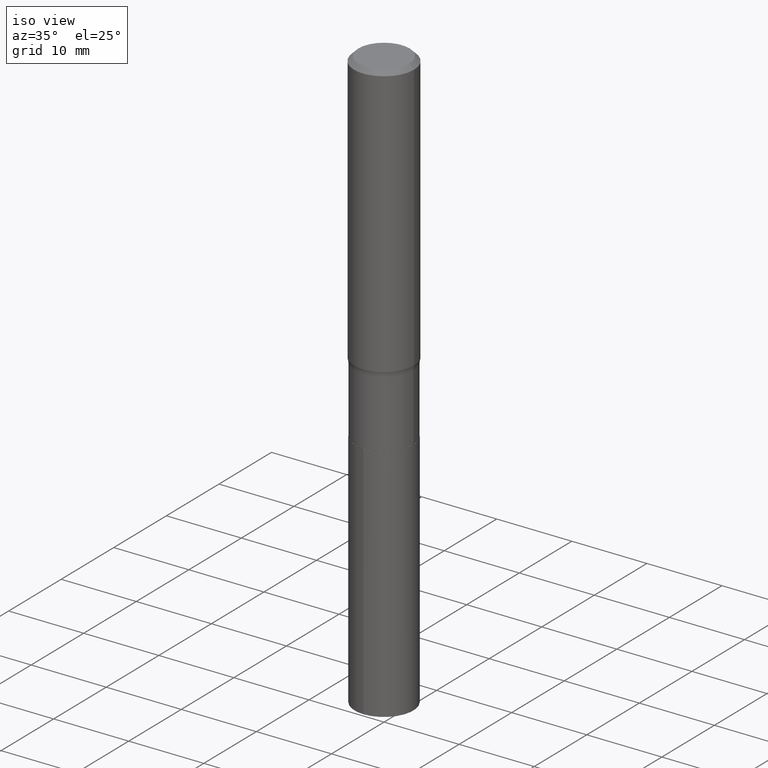
[diagram: clean part render]
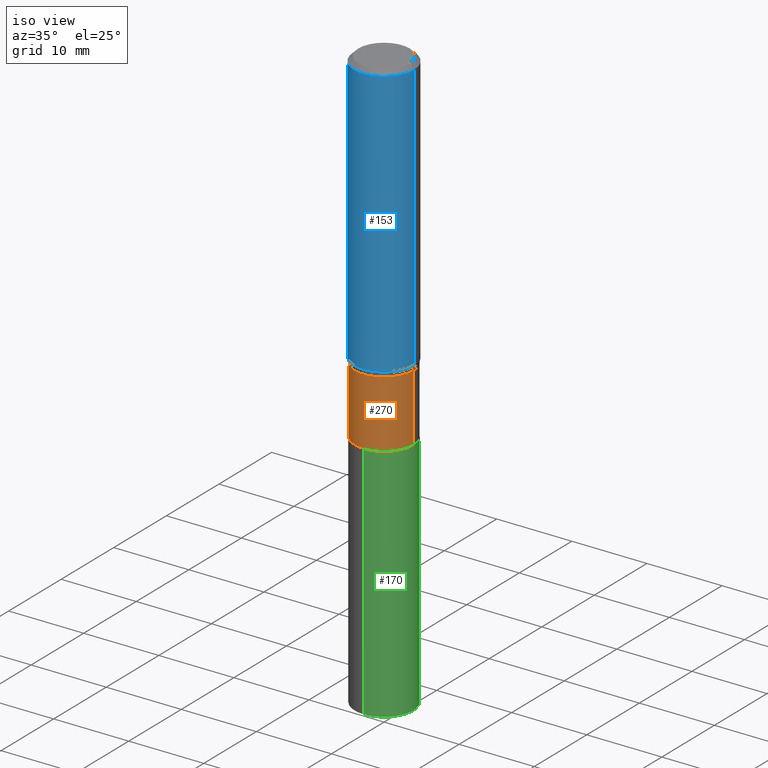
[diagram: same view with three faces highlighted in distinct colors, each labeled with its STEP entity id]
A machine part, iso view with three faces highlighted in distinct colors.
Their STEP definitions:

[orange] entity #270 — the highlighted cylindrical surface (edge-blend (fillet) strip) has radius 3.9002 mm, axis along (-0, 0, 1).
#66 = VERTEX_POINT ( 'NONE', #290 ) ;
#71 = LINE ( 'NONE', #365, #364 ) ;
#82 = CIRCLE ( 'NONE', #106, 0.1535499999999999643 ) ;
#86 = CIRCLE ( 'NONE', #376, 0.1535499999999999921 ) ;
#93 = CARTESIAN_POINT ( 'NONE',  ( 0.000000000000000000, 0.000000000000000000, 0.000000000000000000 ) ) ;
#106 = AXIS2_PLACEMENT_3D ( 'NONE', #489, #235, #154 ) ;
#117 = ORIENTED_EDGE ( 'NONE', *, *, #210, .T. ) ;
#127 = CARTESIAN_POINT ( 'NONE',  ( -0.1535499999999999643, -4.586983156534031207E-15, -1.449899999999999967 ) ) ;
#149 = VERTEX_POINT ( 'NONE', #324 ) ;
#154 = DIRECTION ( 'NONE',  ( 1.000000000000000000, -6.982962677686263555E-15, 0.000000000000000000 ) ) ;
#169 = CARTESIAN_POINT ( 'NONE',  ( 0.1535499999999999643, -6.134532712347401777E-15, -1.449899999999999967 ) ) ;
#183 = DIRECTION ( 'NONE',  ( -2.445468806185136877E-29, 3.491481338843145188E-15, 1.000000000000000000 ) ) ;
#209 = EDGE_CURVE ( 'NONE', #149, #460, #71, .T. ) ;
#210 = EDGE_CURVE ( 'NONE', #149, #66, #86, .T. ) ;
#227 = LINE ( 'NONE', #484, #441 ) ;
#235 = DIRECTION ( 'NONE',  ( -2.445468806185136597E-29, 3.491481338843145583E-15, 1.000000000000000000 ) ) ;
#247 = EDGE_CURVE ( 'NONE', #66, #383, #227, .T. ) ;
#270 = ADVANCED_FACE ( 'NONE', ( #303 ), #409, .T. ) ;
#285 = AXIS2_PLACEMENT_3D ( 'NONE', #93, #411, #297 ) ;
#290 = CARTESIAN_POINT ( 'NONE',  ( 0.1535499999999999921, -7.365978180557380092E-15, -1.802599999999999980 ) ) ;
#297 = DIRECTION ( 'NONE',  ( 1.000000000000000000, -6.982962677686267499E-15, 4.876176775795935793E-29 ) ) ;
#301 = CARTESIAN_POINT ( 'NONE',  ( 4.408202070029327321E-29, -6.293744261398653946E-15, -1.802599999999999980 ) ) ;
#303 = FACE_OUTER_BOUND ( 'NONE', #312, .T. ) ;
#312 = EDGE_LOOP ( 'NONE', ( #361, #117, #381, #348 ) ) ;
#324 = CARTESIAN_POINT ( 'NONE',  ( -0.1535500000000000198, -4.586983156534031207E-15, -1.802599999999999980 ) ) ;
#338 = EDGE_CURVE ( 'NONE', #460, #383, #82, .T. ) ;
#348 = ORIENTED_EDGE ( 'NONE', *, *, #338, .F. ) ;
#361 = ORIENTED_EDGE ( 'NONE', *, *, #209, .F. ) ;
#364 = VECTOR ( 'NONE', #183, 39.37007874015748143 ) ;
#365 = CARTESIAN_POINT ( 'NONE',  ( -0.1535499999999999643, 1.091038370759633582E-15, -7.553024831086406471E-30 ) ) ;
#374 = DIRECTION ( 'NONE',  ( -2.445468806185136877E-29, 3.491481338843145188E-15, 1.000000000000000000 ) ) ;
#376 = AXIS2_PLACEMENT_3D ( 'NONE', #301, #477, #414 ) ;
#381 = ORIENTED_EDGE ( 'NONE', *, *, #247, .T. ) ;
#383 = VERTEX_POINT ( 'NONE', #169 ) ;
#409 = CYLINDRICAL_SURFACE ( 'NONE', #285, 0.1535499999999999643 ) ;
#411 = DIRECTION ( 'NONE',  ( -2.445468806185136597E-29, 3.491481338843145583E-15, 1.000000000000000000 ) ) ;
#414 = DIRECTION ( 'NONE',  ( 1.000000000000000000, -6.982962677686269077E-15, 0.000000000000000000 ) ) ;
#441 = VECTOR ( 'NONE', #374, 39.37007874015748143 ) ;
#460 = VERTEX_POINT ( 'NONE', #127 ) ;
#477 = DIRECTION ( 'NONE',  ( -2.445468806185136597E-29, 3.491481338843145583E-15, 1.000000000000000000 ) ) ;
#484 = CARTESIAN_POINT ( 'NONE',  ( 0.1535499999999999643, -1.072233919158726146E-15, 7.487369439234657779E-30 ) ) ;
#489 = CARTESIAN_POINT ( 'NONE',  ( 3.545685222087829505E-29, -5.062298793188676419E-15, -1.449899999999999967 ) ) ;

[blue] entity #153 — the highlighted cylindrical surface (partial cylindrical patch) has radius 4.0005 mm, axis along (-0, 0, 1).
#5 = DIRECTION ( 'NONE',  ( -2.445468806185136877E-29, 3.491481338843145188E-15, 1.000000000000000000 ) ) ;
#12 = CARTESIAN_POINT ( 'NONE',  ( 3.485753895980108822E-29, -4.976732742954058685E-15, -1.425392909189378665 ) ) ;
#28 = EDGE_CURVE ( 'NONE', #426, #182, #255, .T. ) ;
#35 = ORIENTED_EDGE ( 'NONE', *, *, #291, .F. ) ;
#38 = AXIS2_PLACEMENT_3D ( 'NONE', #363, #328, #447 ) ;
#39 = VERTEX_POINT ( 'NONE', #161 ) ;
#72 = ORIENTED_EDGE ( 'NONE', *, *, #28, .T. ) ;
#77 = CIRCLE ( 'NONE', #449, 0.1575000000000001676 ) ;
#90 = CARTESIAN_POINT ( 'NONE',  ( -0.1575000000000000011, -1.410504685969955451E-15, -0.02362500000000014588 ) ) ;
#101 = CARTESIAN_POINT ( 'NONE',  ( 0.1575000000000000844, -1.099816621735587677E-15, 7.679978421878603638E-30 ) ) ;
#114 = VECTOR ( 'NONE', #5, 39.37007874015748143 ) ;
#125 = VECTOR ( 'NONE', #138, 39.37007874015748143 ) ;
#135 = FACE_OUTER_BOUND ( 'NONE', #144, .T. ) ;
#137 = DIRECTION ( 'NONE',  ( -2.445468806185136597E-29, 3.491481338843145583E-15, 1.000000000000000000 ) ) ;
#138 = DIRECTION ( 'NONE',  ( -2.445468806185136877E-29, 3.491481338843145188E-15, 1.000000000000000000 ) ) ;
#144 = EDGE_LOOP ( 'NONE', ( #259, #305, #72, #35 ) ) ;
#145 = DIRECTION ( 'NONE',  ( -2.445468806185136597E-29, 3.491481338843145583E-15, 1.000000000000000000 ) ) ;
#153 = ADVANCED_FACE ( 'NONE', ( #135 ), #249, .T. ) ;
#155 = VERTEX_POINT ( 'NONE', #90 ) ;
#161 = CARTESIAN_POINT ( 'NONE',  ( -0.1575000000000001676, -3.857627934131899504E-15, -1.425392909189378665 ) ) ;
#182 = VERTEX_POINT ( 'NONE', #219 ) ;
#219 = CARTESIAN_POINT ( 'NONE',  ( 0.1575000000000000011, -1.182302868365756679E-15, -0.02362500000000014588 ) ) ;
#236 = EDGE_CURVE ( 'NONE', #39, #155, #445, .T. ) ;
#249 = CYLINDRICAL_SURFACE ( 'NONE', #38, 0.1575000000000000844 ) ;
#255 = LINE ( 'NONE', #101, #114 ) ;
#259 = ORIENTED_EDGE ( 'NONE', *, *, #236, .F. ) ;
#291 = EDGE_CURVE ( 'NONE', #155, #182, #356, .T. ) ;
#305 = ORIENTED_EDGE ( 'NONE', *, *, #354, .T. ) ;
#319 = AXIS2_PLACEMENT_3D ( 'NONE', #369, #145, #420 ) ;
#320 = DIRECTION ( 'NONE',  ( 1.000000000000000000, -6.982962677686267499E-15, 0.000000000000000000 ) ) ;
#328 = DIRECTION ( 'NONE',  ( -2.445468806185136597E-29, 3.491481338843145583E-15, 1.000000000000000000 ) ) ;
#352 = CARTESIAN_POINT ( 'NONE',  ( 0.1575000000000001676, -6.076549364689645377E-15, -1.425392909189378665 ) ) ;
#354 = EDGE_CURVE ( 'NONE', #39, #426, #77, .T. ) ;
#356 = CIRCLE ( 'NONE', #319, 0.1575000000000000011 ) ;
#363 = CARTESIAN_POINT ( 'NONE',  ( 0.000000000000000000, 0.000000000000000000, 0.000000000000000000 ) ) ;
#369 = CARTESIAN_POINT ( 'NONE',  ( 5.777420054612421104E-31, -8.248624663016984002E-17, -0.02362500000000014588 ) ) ;
#420 = DIRECTION ( 'NONE',  ( 1.000000000000000000, -6.982962677686265922E-15, 0.000000000000000000 ) ) ;
#426 = VERTEX_POINT ( 'NONE', #352 ) ;
#445 = LINE ( 'NONE', #483, #125 ) ;
#447 = DIRECTION ( 'NONE',  ( 1.000000000000000000, -6.982962677686267499E-15, 4.876176775795936353E-29 ) ) ;
#449 = AXIS2_PLACEMENT_3D ( 'NONE', #12, #137, #320 ) ;
#483 = CARTESIAN_POINT ( 'NONE',  ( -0.1575000000000000844, 1.119104808822158392E-15, -7.747322767151481189E-30 ) ) ;

[green] entity #170 — the highlighted cylindrical surface (edge-blend (fillet) strip) has radius 3.9002 mm, axis along (-0, 0, 1).
#7 = AXIS2_PLACEMENT_3D ( 'NONE', #471, #406, #362 ) ;
#20 = CYLINDRICAL_SURFACE ( 'NONE', #58, 0.1535499999999999921 ) ;
#26 = VERTEX_POINT ( 'NONE', #98 ) ;
#29 = VERTEX_POINT ( 'NONE', #194 ) ;
#30 = VECTOR ( 'NONE', #295, 39.37007874015748143 ) ;
#58 = AXIS2_PLACEMENT_3D ( 'NONE', #65, #246, #410 ) ;
#65 = CARTESIAN_POINT ( 'NONE',  ( 4.409424804432419562E-29, -6.295490002068075450E-15, -1.803099999999999925 ) ) ;
#79 = DIRECTION ( 'NONE',  ( -6.982962677686266711E-15, -1.000000000000000000, 3.558252026915354491E-15 ) ) ;
#98 = CARTESIAN_POINT ( 'NONE',  ( -1.072233919158650810E-15, -0.1535500000000106224, -3.061785870967631773 ) ) ;
#110 = CARTESIAN_POINT ( 'NONE',  ( 7.487811046509325449E-29, -1.068972542879178408E-14, -3.061785870967632217 ) ) ;
#111 = EDGE_LOOP ( 'NONE', ( #490, #343, #370, #388 ) ) ;
#130 = CARTESIAN_POINT ( 'NONE',  ( -1.072233919158681970E-15, -0.1535500000000062926, -1.803099999999999481 ) ) ;
#147 = EDGE_CURVE ( 'NONE', #327, #189, #443, .T. ) ;
#164 = AXIS2_PLACEMENT_3D ( 'NONE', #110, #425, #79 ) ;
#170 = ADVANCED_FACE ( 'NONE', ( #451 ), #20, .T. ) ;
#172 = CARTESIAN_POINT ( 'NONE',  ( 1.091038370759677758E-15, 0.1535499999999936915, -1.803100000000000591 ) ) ;
#189 = VERTEX_POINT ( 'NONE', #407 ) ;
#191 = EDGE_CURVE ( 'NONE', #26, #29, #245, .T. ) ;
#194 = CARTESIAN_POINT ( 'NONE',  ( -1.072233919158681970E-15, -0.1535500000000062926, -1.803099999999999481 ) ) ;
#199 = CIRCLE ( 'NONE', #164, 0.1535499999999999921 ) ;
#208 = VECTOR ( 'NONE', #478, 39.37007874015748143 ) ;
#245 = LINE ( 'NONE', #130, #208 ) ;
#246 = DIRECTION ( 'NONE',  ( -2.445714465445102928E-29, 3.491129540800817350E-15, 1.000000000000000000 ) ) ;
#295 = DIRECTION ( 'NONE',  ( -2.445714465445102928E-29, 3.491129540800817745E-15, 1.000000000000000000 ) ) ;
#327 = VERTEX_POINT ( 'NONE', #458 ) ;
#333 = EDGE_CURVE ( 'NONE', #26, #327, #199, .T. ) ;
#342 = EDGE_CURVE ( 'NONE', #29, #189, #398, .T. ) ;
#343 = ORIENTED_EDGE ( 'NONE', *, *, #147, .T. ) ;
#362 = DIRECTION ( 'NONE',  ( -6.982962677686266711E-15, -1.000000000000000000, 3.558252026915354491E-15 ) ) ;
#370 = ORIENTED_EDGE ( 'NONE', *, *, #342, .F. ) ;
#388 = ORIENTED_EDGE ( 'NONE', *, *, #191, .F. ) ;
#398 = CIRCLE ( 'NONE', #7, 0.1535499999999999921 ) ;
#406 = DIRECTION ( 'NONE',  ( -2.445714465445102928E-29, 3.491129540800817350E-15, 1.000000000000000000 ) ) ;
#407 = CARTESIAN_POINT ( 'NONE',  ( 1.091038370759708918E-15, 0.1535499999999937193, -1.803100000000000591 ) ) ;
#410 = DIRECTION ( 'NONE',  ( -6.982962677686266711E-15, -1.000000000000000000, 3.558252026915354491E-15 ) ) ;
#425 = DIRECTION ( 'NONE',  ( -2.445714465445102928E-29, 3.491129540800817350E-15, 1.000000000000000000 ) ) ;
#443 = LINE ( 'NONE', #172, #30 ) ;
#451 = FACE_OUTER_BOUND ( 'NONE', #111, .T. ) ;
#458 = CARTESIAN_POINT ( 'NONE',  ( 1.091038370759708129E-15, 0.1535499999999892229, -3.061785870967633105 ) ) ;
#471 = CARTESIAN_POINT ( 'NONE',  ( 4.409424804432419562E-29, -6.295490002068075450E-15, -1.803099999999999925 ) ) ;
#478 = DIRECTION ( 'NONE',  ( -2.445714465445102928E-29, 3.491129540800817745E-15, 1.000000000000000000 ) ) ;
#490 = ORIENTED_EDGE ( 'NONE', *, *, #333, .T. ) ;